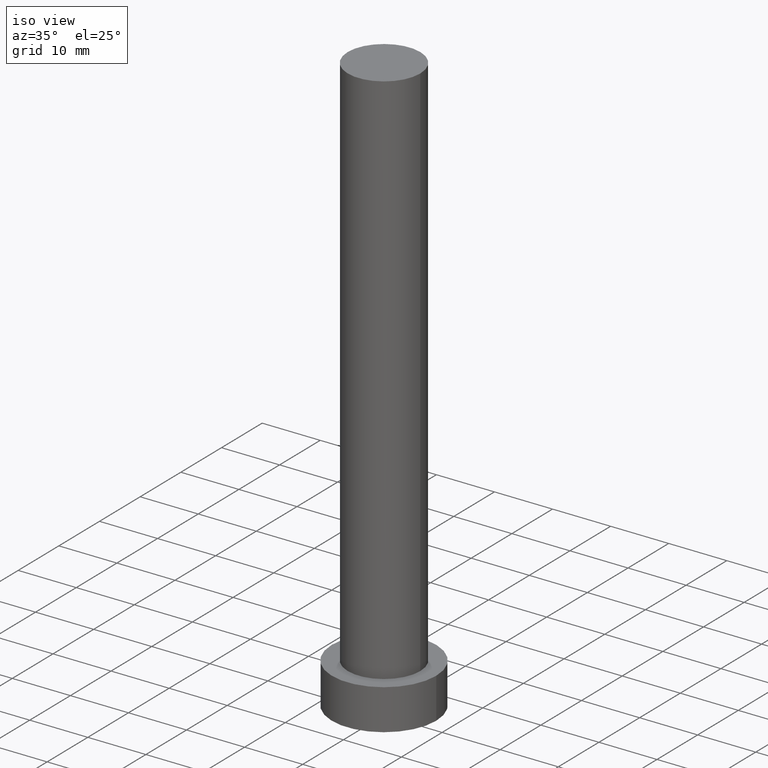
[diagram: clean part render]
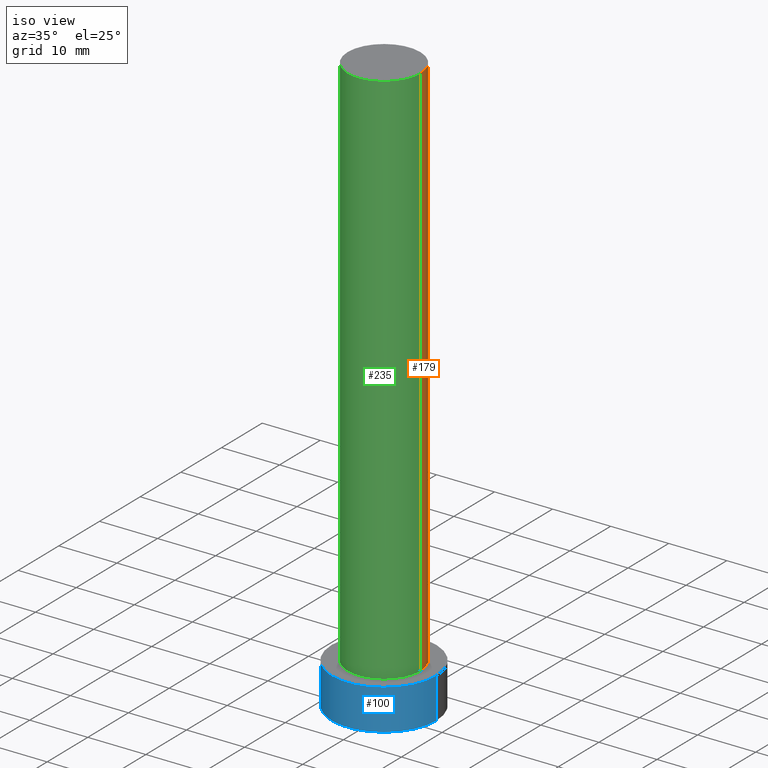
[diagram: same view with three faces highlighted in distinct colors, each labeled with its STEP entity id]
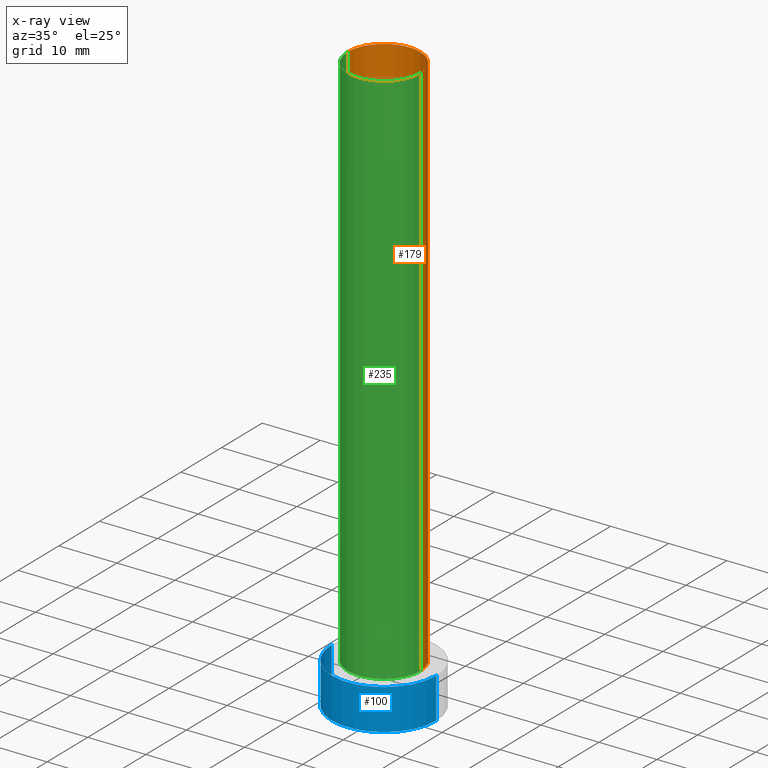
[diagram: x-ray of the same camera — body ghosted, the three highlighted faces saturated]
A machine part, iso view with three faces highlighted in distinct colors.
The next image is the same camera in x-ray (body ghosted, the three faces saturated) — at least one of them is partly hidden behind the body in this view.
Their STEP definitions:

[orange] entity #179 — the highlighted cylindrical surface (partial cylindrical patch) has radius 6.25 mm, axis along (-0, -0, -1).
#8 = ORIENTED_EDGE ( 'NONE', *, *, #137, .T. ) ;
#9 = CARTESIAN_POINT ( 'NONE',  ( -6.250000000000000000, 0.000000000000000000, 100.0000000000000000 ) ) ;
#13 = CIRCLE ( 'NONE', #39, 6.250000000000000000 ) ;
#20 = VERTEX_POINT ( 'NONE', #167 ) ;
#25 = EDGE_LOOP ( 'NONE', ( #66, #8, #82, #83 ) ) ;
#39 = AXIS2_PLACEMENT_3D ( 'NONE', #207, #188, #230 ) ;
#46 = EDGE_CURVE ( 'NONE', #62, #139, #128, .T. ) ;
#50 = CARTESIAN_POINT ( 'NONE',  ( -6.250000000000000000, 0.000000000000000000, 100.0000000000000000 ) ) ;
#53 = DIRECTION ( 'NONE',  ( -0.000000000000000000, -0.000000000000000000, -1.000000000000000000 ) ) ;
#57 = DIRECTION ( 'NONE',  ( -0.000000000000000000, -0.000000000000000000, -1.000000000000000000 ) ) ;
#59 = DIRECTION ( 'NONE',  ( 0.000000000000000000, 0.000000000000000000, 1.000000000000000000 ) ) ;
#60 = EDGE_CURVE ( 'NONE', #220, #139, #13, .T. ) ;
#62 = VERTEX_POINT ( 'NONE', #9 ) ;
#66 = ORIENTED_EDGE ( 'NONE', *, *, #223, .F. ) ;
#76 = VECTOR ( 'NONE', #53, 1000.000000000000000 ) ;
#78 = DIRECTION ( 'NONE',  ( -1.000000000000000000, 0.000000000000000000, 0.000000000000000000 ) ) ;
#82 = ORIENTED_EDGE ( 'NONE', *, *, #60, .T. ) ;
#83 = ORIENTED_EDGE ( 'NONE', *, *, #46, .F. ) ;
#84 = VECTOR ( 'NONE', #187, 1000.000000000000000 ) ;
#93 = CARTESIAN_POINT ( 'NONE',  ( 6.250000000000000000, 7.654042494670955634E-16, 7.000000000000000000 ) ) ;
#116 = AXIS2_PLACEMENT_3D ( 'NONE', #151, #57, #78 ) ;
#128 = LINE ( 'NONE', #50, #76 ) ;
#137 = EDGE_CURVE ( 'NONE', #20, #220, #145, .T. ) ;
#139 = VERTEX_POINT ( 'NONE', #169 ) ;
#145 = LINE ( 'NONE', #229, #84 ) ;
#151 = CARTESIAN_POINT ( 'NONE',  ( 0.000000000000000000, 0.000000000000000000, 100.0000000000000000 ) ) ;
#154 = CARTESIAN_POINT ( 'NONE',  ( 0.000000000000000000, 0.000000000000000000, 100.0000000000000000 ) ) ;
#167 = CARTESIAN_POINT ( 'NONE',  ( 6.250000000000000000, 7.654042494670955634E-16, 100.0000000000000000 ) ) ;
#169 = CARTESIAN_POINT ( 'NONE',  ( -6.250000000000000000, 0.000000000000000000, 7.000000000000000000 ) ) ;
#179 = ADVANCED_FACE ( 'NONE', ( #213 ), #194, .T. ) ;
#187 = DIRECTION ( 'NONE',  ( -0.000000000000000000, -0.000000000000000000, -1.000000000000000000 ) ) ;
#188 = DIRECTION ( 'NONE',  ( 0.000000000000000000, 0.000000000000000000, 1.000000000000000000 ) ) ;
#191 = DIRECTION ( 'NONE',  ( 1.000000000000000000, 0.000000000000000000, 0.000000000000000000 ) ) ;
#194 = CYLINDRICAL_SURFACE ( 'NONE', #116, 6.250000000000000000 ) ;
#202 = CIRCLE ( 'NONE', #211, 6.250000000000000000 ) ;
#207 = CARTESIAN_POINT ( 'NONE',  ( 0.000000000000000000, 0.000000000000000000, 7.000000000000000000 ) ) ;
#211 = AXIS2_PLACEMENT_3D ( 'NONE', #154, #59, #191 ) ;
#213 = FACE_OUTER_BOUND ( 'NONE', #25, .T. ) ;
#220 = VERTEX_POINT ( 'NONE', #93 ) ;
#223 = EDGE_CURVE ( 'NONE', #20, #62, #202, .T. ) ;
#229 = CARTESIAN_POINT ( 'NONE',  ( 6.250000000000000000, 7.654042494670955634E-16, 100.0000000000000000 ) ) ;
#230 = DIRECTION ( 'NONE',  ( 1.000000000000000000, 0.000000000000000000, 0.000000000000000000 ) ) ;

[blue] entity #100 — the highlighted cylindrical surface (partial cylindrical patch) has radius 9 mm, axis along (-0, -0, -1).
#10 = CIRCLE ( 'NONE', #250, 9.000000000000000000 ) ;
#17 = EDGE_CURVE ( 'NONE', #48, #43, #10, .T. ) ;
#19 = EDGE_CURVE ( 'NONE', #48, #40, #68, .T. ) ;
#29 = ORIENTED_EDGE ( 'NONE', *, *, #19, .T. ) ;
#30 = DIRECTION ( 'NONE',  ( -0.000000000000000000, -0.000000000000000000, -1.000000000000000000 ) ) ;
#32 = CARTESIAN_POINT ( 'NONE',  ( -9.000000000000000000, 0.000000000000000000, 7.000000000000000000 ) ) ;
#33 = CARTESIAN_POINT ( 'NONE',  ( 9.000000000000000000, 1.102182119232617714E-15, 7.000000000000000000 ) ) ;
#35 = CARTESIAN_POINT ( 'NONE',  ( 0.000000000000000000, 0.000000000000000000, 7.000000000000000000 ) ) ;
#40 = VERTEX_POINT ( 'NONE', #212 ) ;
#41 = ORIENTED_EDGE ( 'NONE', *, *, #17, .F. ) ;
#43 = VERTEX_POINT ( 'NONE', #33 ) ;
#48 = VERTEX_POINT ( 'NONE', #131 ) ;
#67 = EDGE_CURVE ( 'NONE', #43, #243, #130, .T. ) ;
#68 = LINE ( 'NONE', #32, #122 ) ;
#69 = DIRECTION ( 'NONE',  ( 0.000000000000000000, 0.000000000000000000, 1.000000000000000000 ) ) ;
#70 = DIRECTION ( 'NONE',  ( -0.000000000000000000, -0.000000000000000000, -1.000000000000000000 ) ) ;
#90 = CARTESIAN_POINT ( 'NONE',  ( 0.000000000000000000, 0.000000000000000000, 0.000000000000000000 ) ) ;
#92 = EDGE_CURVE ( 'NONE', #40, #243, #95, .T. ) ;
#95 = CIRCLE ( 'NONE', #206, 9.000000000000000000 ) ;
#100 = ADVANCED_FACE ( 'NONE', ( #205 ), #148, .T. ) ;
#105 = DIRECTION ( 'NONE',  ( -1.000000000000000000, 0.000000000000000000, 0.000000000000000000 ) ) ;
#106 = DIRECTION ( 'NONE',  ( -0.000000000000000000, -0.000000000000000000, -1.000000000000000000 ) ) ;
#122 = VECTOR ( 'NONE', #70, 1000.000000000000000 ) ;
#125 = ORIENTED_EDGE ( 'NONE', *, *, #92, .T. ) ;
#126 = CARTESIAN_POINT ( 'NONE',  ( 0.000000000000000000, 0.000000000000000000, 7.000000000000000000 ) ) ;
#129 = DIRECTION ( 'NONE',  ( 1.000000000000000000, 0.000000000000000000, 0.000000000000000000 ) ) ;
#130 = LINE ( 'NONE', #247, #174 ) ;
#131 = CARTESIAN_POINT ( 'NONE',  ( -9.000000000000000000, 0.000000000000000000, 7.000000000000000000 ) ) ;
#148 = CYLINDRICAL_SURFACE ( 'NONE', #234, 9.000000000000000000 ) ;
#174 = VECTOR ( 'NONE', #106, 1000.000000000000000 ) ;
#192 = CARTESIAN_POINT ( 'NONE',  ( 9.000000000000000000, 1.102182119232617714E-15, 0.000000000000000000 ) ) ;
#205 = FACE_OUTER_BOUND ( 'NONE', #222, .T. ) ;
#206 = AXIS2_PLACEMENT_3D ( 'NONE', #90, #231, #129 ) ;
#210 = DIRECTION ( 'NONE',  ( 1.000000000000000000, 0.000000000000000000, 0.000000000000000000 ) ) ;
#212 = CARTESIAN_POINT ( 'NONE',  ( -9.000000000000000000, 0.000000000000000000, 0.000000000000000000 ) ) ;
#222 = EDGE_LOOP ( 'NONE', ( #225, #41, #29, #125 ) ) ;
#225 = ORIENTED_EDGE ( 'NONE', *, *, #67, .F. ) ;
#231 = DIRECTION ( 'NONE',  ( 0.000000000000000000, 0.000000000000000000, 1.000000000000000000 ) ) ;
#234 = AXIS2_PLACEMENT_3D ( 'NONE', #126, #30, #105 ) ;
#243 = VERTEX_POINT ( 'NONE', #192 ) ;
#247 = CARTESIAN_POINT ( 'NONE',  ( 9.000000000000000000, 1.102182119232617714E-15, 7.000000000000000000 ) ) ;
#250 = AXIS2_PLACEMENT_3D ( 'NONE', #35, #69, #210 ) ;

[green] entity #235 — the highlighted cylindrical surface (partial cylindrical patch) has radius 6.25 mm, axis along (-0, -0, -1).
#9 = CARTESIAN_POINT ( 'NONE',  ( -6.250000000000000000, 0.000000000000000000, 100.0000000000000000 ) ) ;
#11 = DIRECTION ( 'NONE',  ( 0.000000000000000000, 0.000000000000000000, 1.000000000000000000 ) ) ;
#20 = VERTEX_POINT ( 'NONE', #167 ) ;
#37 = FACE_OUTER_BOUND ( 'NONE', #136, .T. ) ;
#46 = EDGE_CURVE ( 'NONE', #62, #139, #128, .T. ) ;
#50 = CARTESIAN_POINT ( 'NONE',  ( -6.250000000000000000, 0.000000000000000000, 100.0000000000000000 ) ) ;
#53 = DIRECTION ( 'NONE',  ( -0.000000000000000000, -0.000000000000000000, -1.000000000000000000 ) ) ;
#62 = VERTEX_POINT ( 'NONE', #9 ) ;
#76 = VECTOR ( 'NONE', #53, 1000.000000000000000 ) ;
#84 = VECTOR ( 'NONE', #187, 1000.000000000000000 ) ;
#93 = CARTESIAN_POINT ( 'NONE',  ( 6.250000000000000000, 7.654042494670955634E-16, 7.000000000000000000 ) ) ;
#112 = DIRECTION ( 'NONE',  ( -1.000000000000000000, 0.000000000000000000, 0.000000000000000000 ) ) ;
#117 = AXIS2_PLACEMENT_3D ( 'NONE', #186, #11, #248 ) ;
#128 = LINE ( 'NONE', #50, #76 ) ;
#132 = EDGE_CURVE ( 'NONE', #62, #20, #216, .T. ) ;
#135 = DIRECTION ( 'NONE',  ( 1.000000000000000000, 0.000000000000000000, 0.000000000000000000 ) ) ;
#136 = EDGE_LOOP ( 'NONE', ( #182, #159, #156, #245 ) ) ;
#137 = EDGE_CURVE ( 'NONE', #20, #220, #145, .T. ) ;
#139 = VERTEX_POINT ( 'NONE', #169 ) ;
#145 = LINE ( 'NONE', #229, #84 ) ;
#156 = ORIENTED_EDGE ( 'NONE', *, *, #46, .T. ) ;
#159 = ORIENTED_EDGE ( 'NONE', *, *, #132, .F. ) ;
#160 = EDGE_CURVE ( 'NONE', #139, #220, #173, .T. ) ;
#167 = CARTESIAN_POINT ( 'NONE',  ( 6.250000000000000000, 7.654042494670955634E-16, 100.0000000000000000 ) ) ;
#169 = CARTESIAN_POINT ( 'NONE',  ( -6.250000000000000000, 0.000000000000000000, 7.000000000000000000 ) ) ;
#170 = CARTESIAN_POINT ( 'NONE',  ( 0.000000000000000000, 0.000000000000000000, 7.000000000000000000 ) ) ;
#173 = CIRCLE ( 'NONE', #193, 6.250000000000000000 ) ;
#175 = CYLINDRICAL_SURFACE ( 'NONE', #254, 6.250000000000000000 ) ;
#182 = ORIENTED_EDGE ( 'NONE', *, *, #137, .F. ) ;
#186 = CARTESIAN_POINT ( 'NONE',  ( 0.000000000000000000, 0.000000000000000000, 100.0000000000000000 ) ) ;
#187 = DIRECTION ( 'NONE',  ( -0.000000000000000000, -0.000000000000000000, -1.000000000000000000 ) ) ;
#193 = AXIS2_PLACEMENT_3D ( 'NONE', #170, #252, #135 ) ;
#216 = CIRCLE ( 'NONE', #117, 6.250000000000000000 ) ;
#218 = DIRECTION ( 'NONE',  ( -0.000000000000000000, -0.000000000000000000, -1.000000000000000000 ) ) ;
#220 = VERTEX_POINT ( 'NONE', #93 ) ;
#229 = CARTESIAN_POINT ( 'NONE',  ( 6.250000000000000000, 7.654042494670955634E-16, 100.0000000000000000 ) ) ;
#235 = ADVANCED_FACE ( 'NONE', ( #37 ), #175, .T. ) ;
#245 = ORIENTED_EDGE ( 'NONE', *, *, #160, .T. ) ;
#248 = DIRECTION ( 'NONE',  ( 1.000000000000000000, 0.000000000000000000, 0.000000000000000000 ) ) ;
#252 = DIRECTION ( 'NONE',  ( 0.000000000000000000, 0.000000000000000000, 1.000000000000000000 ) ) ;
#253 = CARTESIAN_POINT ( 'NONE',  ( 0.000000000000000000, 0.000000000000000000, 100.0000000000000000 ) ) ;
#254 = AXIS2_PLACEMENT_3D ( 'NONE', #253, #218, #112 ) ;